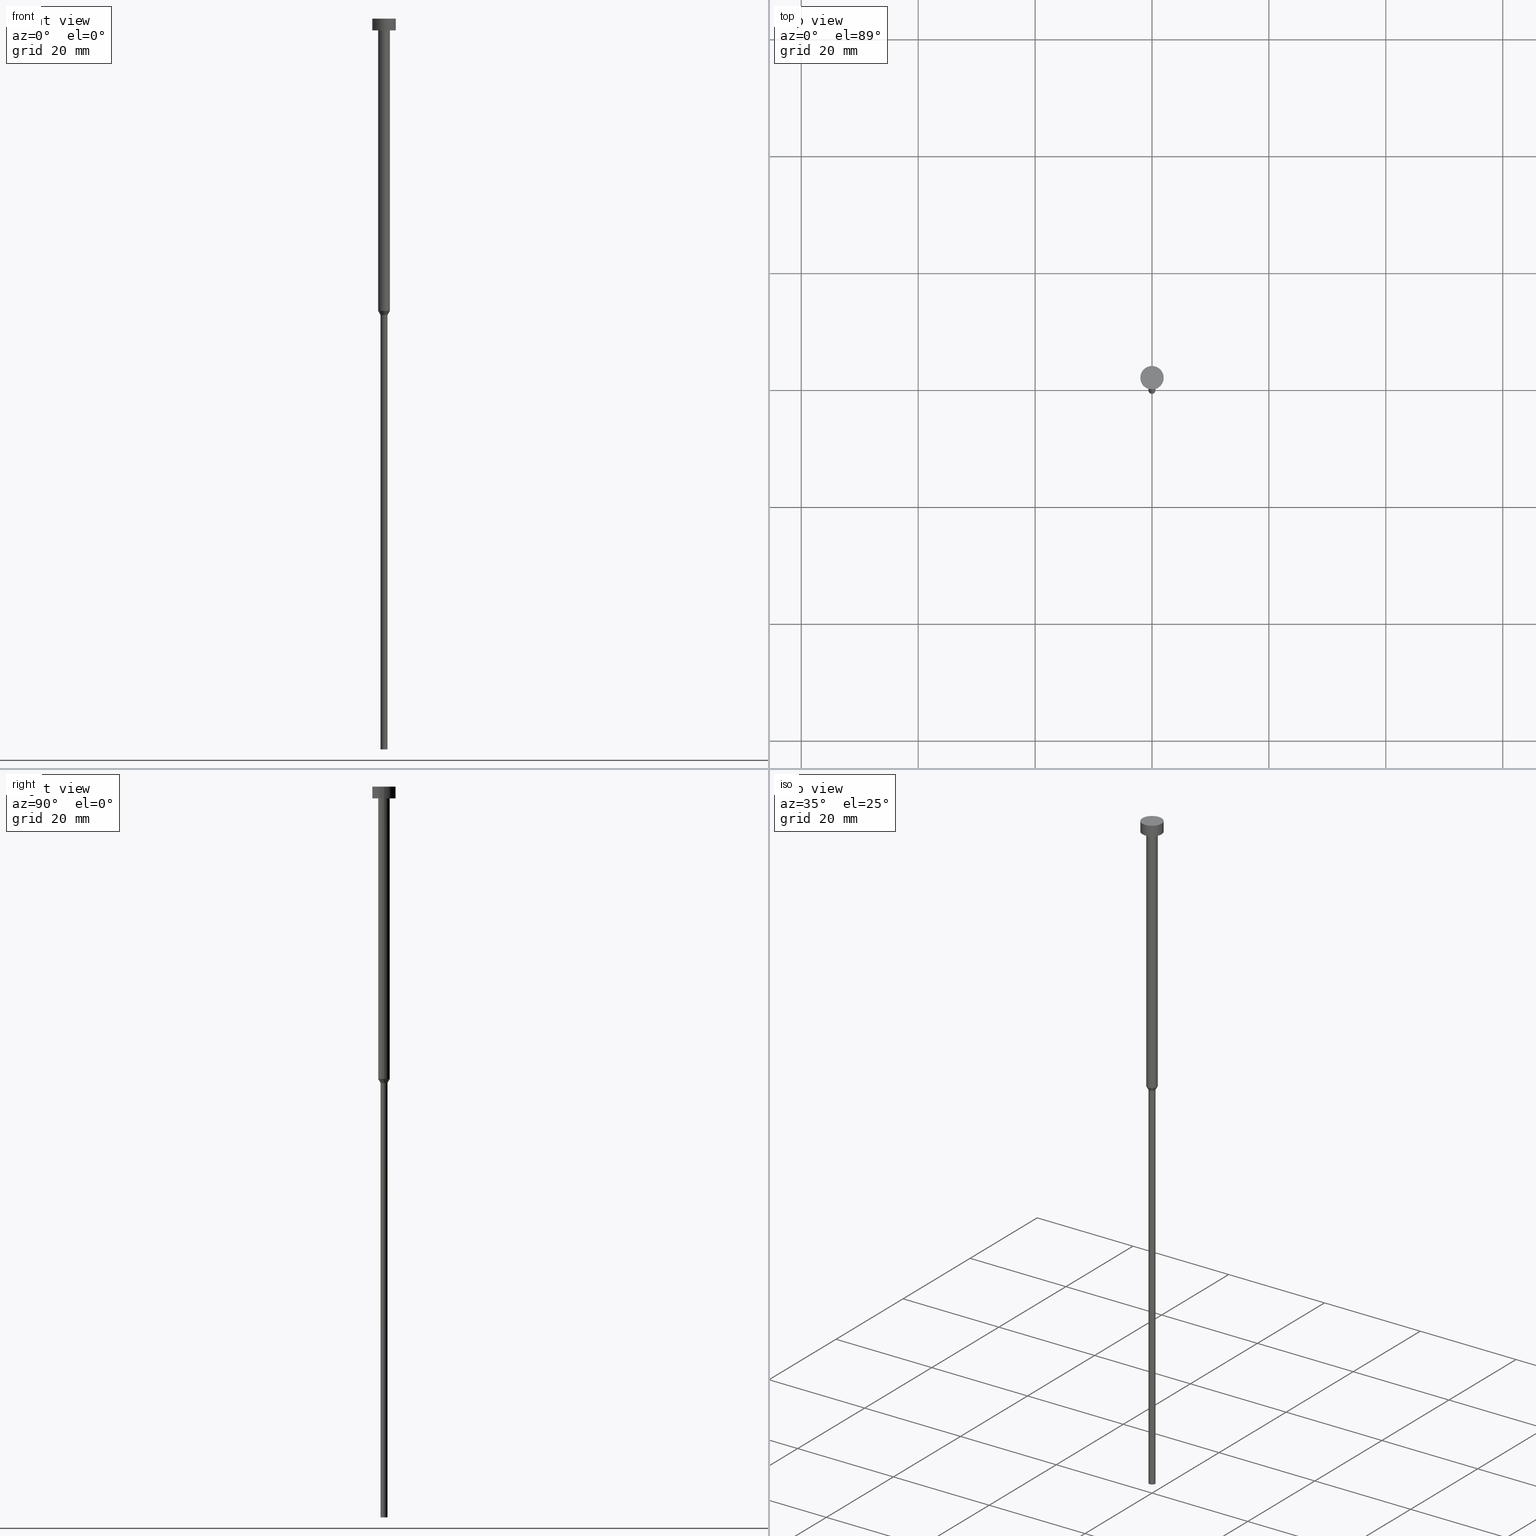
[diagram: canonical four-view strip — front | top / right | iso, engineering-drawing reading convention]
A machine part, canonical four-view strip (front | top / right | iso — engineering-drawing reading convention). The complete STEP part file that produces these views, byte-faithful:
ISO-10303-21;
HEADER;
FILE_DESCRIPTION (( 'STEP AP203' ),
    '1' );
FILE_NAME ('6c34.STEP',
    '2023-02-13T11:52:46',
    ( '' ),
    ( '' ),
    'SwSTEP 2.0',
    'SolidWorks 2019',
    '' );
FILE_SCHEMA (( 'CONFIG_CONTROL_DESIGN' ));
ENDSEC;

DATA;
#1 = AXIS2_PLACEMENT_3D ( 'NONE', #342, #131, #47 ) ;
#2 = DIRECTION ( 'NONE',  ( -0.000000000000000000, -0.000000000000000000, 1.000000000000000000 ) ) ;
#3 = ORIENTED_EDGE ( 'NONE', *, *, #87, .F. ) ;
#4 = DIRECTION ( 'NONE',  ( 0.000000000000000000, 0.000000000000000000, -1.000000000000000000 ) ) ;
#5 = DIRECTION ( 'NONE',  ( -0.000000000000000000, -0.000000000000000000, 1.000000000000000000 ) ) ;
#6 = ORIENTED_EDGE ( 'NONE', *, *, #35, .T. ) ;
#7 = EDGE_CURVE ( 'NONE', #31, #330, #321, .T. ) ;
#8 = CONICAL_SURFACE ( 'NONE', #316, 1.000000000000003109, 0.5235987755983010361 ) ;
#9 = FACE_OUTER_BOUND ( 'NONE', #79, .T. ) ;
#10 = LOCAL_TIME ( 12, 52, 46.00000000000000000, #15 ) ;
#11 = DATE_AND_TIME ( #228, #10 ) ;
#12 = EDGE_LOOP ( 'NONE', ( #86, #160, #252, #32 ) ) ;
#13 = PERSON_AND_ORGANIZATION_ROLE ( 'design_owner' ) ;
#14 = CIRCLE ( 'NONE', #216, 1.000000000000003553 ) ;
#15 = COORDINATED_UNIVERSAL_TIME_OFFSET ( 1, 0, .AHEAD. ) ;
#16 = AXIS2_PLACEMENT_3D ( 'NONE', #264, #243, #238 ) ;
#17 = CALENDAR_DATE ( 2023, 13, 2 ) ;
#18 = DIRECTION ( 'NONE',  ( 1.000000000000000000, 0.000000000000000000, 0.000000000000000000 ) ) ;
#19 = PERSON_AND_ORGANIZATION ( #335, #214 ) ;
#20 = ADVANCED_FACE ( 'NONE', ( #246 ), #8, .T. ) ;
#21 = CALENDAR_DATE ( 2023, 13, 2 ) ;
#22 = CARTESIAN_POINT ( 'NONE',  ( 1.000000000000003331, 0.000000000000000000, 0.000000000000000000 ) ) ;
#23 = PERSON_AND_ORGANIZATION ( #335, #214 ) ;
#24 = ADVANCED_FACE ( 'NONE', ( #43 ), #85, .T. ) ;
#25 = FACE_OUTER_BOUND ( 'NONE', #116, .T. ) ;
#26 = DIRECTION ( 'NONE',  ( -0.000000000000000000, -0.000000000000000000, 1.000000000000000000 ) ) ;
#27 = CARTESIAN_POINT ( 'NONE',  ( -0.5999999999999998668, 7.347880794884117764E-17, 0.000000000000000000 ) ) ;
#28 = CARTESIAN_POINT ( 'NONE',  ( 0.000000000000000000, 0.000000000000000000, 0.000000000000000000 ) ) ;
#29 = VECTOR ( 'NONE', #95, 1000.000000000000000 ) ;
#30 = CYLINDRICAL_SURFACE ( 'NONE', #16, 0.5999999999999998668 ) ;
#31 = VERTEX_POINT ( 'NONE', #196 ) ;
#32 = ORIENTED_EDGE ( 'NONE', *, *, #288, .F. ) ;
#33 = DIRECTION ( 'NONE',  ( 1.000000000000000000, 0.000000000000000000, 0.000000000000000000 ) ) ;
#34 = VERTEX_POINT ( 'NONE', #56 ) ;
#35 = EDGE_CURVE ( 'NONE', #310, #112, #339, .T. ) ;
#36 = CARTESIAN_POINT ( 'NONE',  ( -2.000000000000000000, 2.449293598294706414E-16, -2.449293598294705921E-16 ) ) ;
#37 = VECTOR ( 'NONE', #106, 1000.000000000000000 ) ;
#38 = DIRECTION ( 'NONE',  ( 1.000000000000000000, 0.000000000000000000, 0.000000000000000000 ) ) ;
#39 = CIRCLE ( 'NONE', #192, 0.5999999999999999778 ) ;
#40 = DIRECTION ( 'NONE',  ( 0.000000000000000000, -0.000000000000000000, 1.000000000000000000 ) ) ;
#41 = DIRECTION ( 'NONE',  ( 1.000000000000000000, 0.000000000000000000, 0.000000000000000000 ) ) ;
#42 = CC_DESIGN_APPROVAL ( #206, ( #100 ) ) ;
#43 = FACE_OUTER_BOUND ( 'NONE', #183, .T. ) ;
#44 = ORIENTED_EDGE ( 'NONE', *, *, #107, .T. ) ;
#45 = VERTEX_POINT ( 'NONE', #170 ) ;
#46 = APPROVAL_DATE_TIME ( #230, #67 ) ;
#47 = DIRECTION ( 'NONE',  ( 1.000000000000000000, 0.000000000000000000, 0.000000000000000000 ) ) ;
#48 = CARTESIAN_POINT ( 'NONE',  ( 0.000000000000000000, 0.000000000000000000, -50.69282032302755425 ) ) ;
#49 = EDGE_LOOP ( 'NONE', ( #256, #289, #328, #57 ) ) ;
#50 = CIRCLE ( 'NONE', #234, 1.000000000000003109 ) ;
#51 = DATE_TIME_ROLE ( 'creation_date' ) ;
#52 = EDGE_CURVE ( 'NONE', #276, #34, #241, .T. ) ;
#53 = CARTESIAN_POINT ( 'NONE',  ( -2.000000000000000000, 2.449293598294706414E-16, 0.000000000000000000 ) ) ;
#54 = ORIENTED_EDGE ( 'NONE', *, *, #146, .F. ) ;
#55 = VERTEX_POINT ( 'NONE', #266 ) ;
#56 = CARTESIAN_POINT ( 'NONE',  ( -0.5999999999999999778, 7.347880794884117764E-17, -50.69282032302755425 ) ) ;
#57 = ORIENTED_EDGE ( 'NONE', *, *, #72, .F. ) ;
#58 = CARTESIAN_POINT ( 'NONE',  ( -0.5999999999999998668, 7.347880794884117764E-17, -125.0000000000000000 ) ) ;
#59 = APPROVAL_PERSON_ORGANIZATION ( #81, #67, #186 ) ;
#60 = CARTESIAN_POINT ( 'NONE',  ( 0.000000000000000000, 0.000000000000000000, -2.449293598294705921E-16 ) ) ;
#61 = CARTESIAN_POINT ( 'NONE',  ( -1.000000000000003331, 1.224646799147357151E-16, 0.000000000000000000 ) ) ;
#62 = DIRECTION ( 'NONE',  ( 1.000000000000000000, 0.000000000000000000, 0.000000000000000000 ) ) ;
#63 = CARTESIAN_POINT ( 'NONE',  ( 0.000000000000000000, 0.000000000000000000, -50.00000000000000000 ) ) ;
#64 = VERTEX_POINT ( 'NONE', #240 ) ;
#65 = UNCERTAINTY_MEASURE_WITH_UNIT (LENGTH_MEASURE( 1.000000000000000082E-05 ), #222, 'distance_accuracy_value', 'NONE');
#66 = DIRECTION ( 'NONE',  ( 1.000000000000000000, 0.000000000000000000, 0.000000000000000000 ) ) ;
#67 = APPROVAL ( #77, 'NEUR�EN�' ) ;
#68 = CARTESIAN_POINT ( 'NONE',  ( 0.000000000000000000, 0.000000000000000000, -125.0000000000000000 ) ) ;
#69 = CARTESIAN_POINT ( 'NONE',  ( 2.000000000000000000, 0.000000000000000000, -2.449293598294705921E-16 ) ) ;
#70 = APPROVAL_PERSON_ORGANIZATION ( #133, #206, #253 ) ;
#71 = EDGE_LOOP ( 'NONE', ( #286, #172 ) ) ;
#72 = EDGE_CURVE ( 'NONE', #145, #45, #14, .T. ) ;
#73 = APPLICATION_CONTEXT ( 'configuration controlled 3d designs of mechanical parts and assemblies' ) ;
#74 = DATE_AND_TIME ( #313, #271 ) ;
#75 = LINE ( 'NONE', #139, #37 ) ;
#76 = ORIENTED_EDGE ( 'NONE', *, *, #7, .T. ) ;
#77 = APPROVAL_STATUS ( 'not_yet_approved' ) ;
#78 = EDGE_CURVE ( 'NONE', #34, #31, #39, .T. ) ;
#79 = EDGE_LOOP ( 'NONE', ( #152, #165, #178, #89 ) ) ;
#80 = AXIS2_PLACEMENT_3D ( 'NONE', #68, #202, #244 ) ;
#81 = PERSON_AND_ORGANIZATION ( #335, #214 ) ;
#82 = ORIENTED_EDGE ( 'NONE', *, *, #78, .F. ) ;
#83 = COORDINATED_UNIVERSAL_TIME_OFFSET ( 1, 0, .AHEAD. ) ;
#84 = AXIS2_PLACEMENT_3D ( 'NONE', #180, #354, #123 ) ;
#85 = CYLINDRICAL_SURFACE ( 'NONE', #305, 1.000000000000003331 ) ;
#86 = ORIENTED_EDGE ( 'NONE', *, *, #227, .T. ) ;
#87 = EDGE_CURVE ( 'NONE', #34, #137, #92, .T. ) ;
#88 = ADVANCED_FACE ( 'NONE', ( #25 ), #143, .T. ) ;
#89 = ORIENTED_EDGE ( 'NONE', *, *, #107, .F. ) ;
#90 = DIRECTION ( 'NONE',  ( -0.000000000000000000, -0.000000000000000000, 1.000000000000000000 ) ) ;
#91 = EDGE_LOOP ( 'NONE', ( #122, #278 ) ) ;
#92 = LINE ( 'NONE', #258, #130 ) ;
#93 = DIRECTION ( 'NONE',  ( 0.5000000000000018874, 0.000000000000000000, 0.8660254037844375974 ) ) ;
#94 = EDGE_CURVE ( 'NONE', #330, #45, #118, .T. ) ;
#95 = DIRECTION ( 'NONE',  ( -0.000000000000000000, -0.000000000000000000, 1.000000000000000000 ) ) ;
#96 = CYLINDRICAL_SURFACE ( 'NONE', #225, 0.5999999999999998668 ) ;
#97 = CIRCLE ( 'NONE', #280, 2.000000000000000000 ) ;
#98 = FACE_BOUND ( 'NONE', #175, .T. ) ;
#99 = CYLINDRICAL_SURFACE ( 'NONE', #349, 2.000000000000000000 ) ;
#100 = PRODUCT_DEFINITION ( 'NEZN�M�', '', #135, #104 ) ;
#101 = DIRECTION ( 'NONE',  ( 1.000000000000000000, 0.000000000000000000, 0.000000000000000000 ) ) ;
#102 = DIRECTION ( 'NONE',  ( -0.000000000000000000, -0.000000000000000000, 1.000000000000000000 ) ) ;
#103 =( GEOMETRIC_REPRESENTATION_CONTEXT ( 3 ) GLOBAL_UNCERTAINTY_ASSIGNED_CONTEXT ( ( #65 ) ) GLOBAL_UNIT_ASSIGNED_CONTEXT ( ( #222, #326, #129 ) ) REPRESENTATION_CONTEXT ( 'NONE', 'WORKASPACE' ) );
#104 = DESIGN_CONTEXT ( 'detailed design', #164, 'design' ) ;
#105 = PERSON_AND_ORGANIZATION ( #335, #214 ) ;
#106 = DIRECTION ( 'NONE',  ( -0.000000000000000000, -0.000000000000000000, 1.000000000000000000 ) ) ;
#107 = EDGE_CURVE ( 'NONE', #64, #112, #75, .T. ) ;
#108 = PERSON_AND_ORGANIZATION_ROLE ( 'creator' ) ;
#109 = COORDINATED_UNIVERSAL_TIME_OFFSET ( 1, 0, .AHEAD. ) ;
#110 = AXIS2_PLACEMENT_3D ( 'NONE', #126, #4, #331 ) ;
#111 = PERSON_AND_ORGANIZATION_ROLE ( 'classification_officer' ) ;
#112 = VERTEX_POINT ( 'NONE', #69 ) ;
#113 = PERSON_AND_ORGANIZATION ( #335, #214 ) ;
#114 = VECTOR ( 'NONE', #93, 1000.000000000000000 ) ;
#115 = CARTESIAN_POINT ( 'NONE',  ( 0.000000000000000000, 0.000000000000000000, 0.000000000000000000 ) ) ;
#116 = EDGE_LOOP ( 'NONE', ( #270, #201, #44, #281 ) ) ;
#117 = VECTOR ( 'NONE', #350, 1000.000000000000000 ) ;
#118 = LINE ( 'NONE', #22, #171 ) ;
#119 = ORIENTED_EDGE ( 'NONE', *, *, #94, .F. ) ;
#120 = LINE ( 'NONE', #53, #147 ) ;
#121 = ADVANCED_FACE ( 'NONE', ( #340 ), #211, .T. ) ;
#122 = ORIENTED_EDGE ( 'NONE', *, *, #227, .F. ) ;
#123 = DIRECTION ( 'NONE',  ( -1.000000000000000000, 0.000000000000000000, -0.000000000000000000 ) ) ;
#124 = ORIENTED_EDGE ( 'NONE', *, *, #248, .T. ) ;
#125 = CC_DESIGN_APPROVAL ( #67, ( #135 ) ) ;
#126 = CARTESIAN_POINT ( 'NONE',  ( 0.000000000000000000, 0.000000000000000000, -125.0000000000000000 ) ) ;
#127 = EDGE_LOOP ( 'NONE', ( #3, #343, #76, #285 ) ) ;
#128 = DIRECTION ( 'NONE',  ( 1.000000000000000000, 0.000000000000000000, 0.000000000000000000 ) ) ;
#129 =( NAMED_UNIT ( * ) SI_UNIT ( $, .STERADIAN. ) SOLID_ANGLE_UNIT ( ) );
#130 = VECTOR ( 'NONE', #237, 1000.000000000000000 ) ;
#131 = DIRECTION ( 'NONE',  ( -0.000000000000000000, -0.000000000000000000, 1.000000000000000000 ) ) ;
#132 = ORIENTED_EDGE ( 'NONE', *, *, #162, .F. ) ;
#133 = PERSON_AND_ORGANIZATION ( #335, #214 ) ;
#134 = CC_DESIGN_PERSON_AND_ORGANIZATION_ASSIGNMENT ( #307, #232, ( #100 ) ) ;
#135 = PRODUCT_DEFINITION_FORMATION_WITH_SPECIFIED_SOURCE ( 'LIBOVOLN�', '', #148, .NOT_KNOWN. ) ;
#136 = PRODUCT_DEFINITION_SHAPE ( 'NONE', 'NONE',  #100 ) ;
#137 = VERTEX_POINT ( 'NONE', #275 ) ;
#138 = CLOSED_SHELL ( 'NONE', ( #156, #24, #194, #279, #315, #303, #20, #121, #184, #88, #329 ) ) ;
#139 = CARTESIAN_POINT ( 'NONE',  ( 2.000000000000000000, 0.000000000000000000, 0.000000000000000000 ) ) ;
#140 = CIRCLE ( 'NONE', #334, 0.5999999999999999778 ) ;
#141 = COORDINATED_UNIVERSAL_TIME_OFFSET ( 1, 0, .AHEAD. ) ;
#142 = EDGE_CURVE ( 'NONE', #31, #34, #140, .T. ) ;
#143 = CYLINDRICAL_SURFACE ( 'NONE', #226, 2.000000000000000000 ) ;
#144 = DIRECTION ( 'NONE',  ( -0.000000000000000000, -0.000000000000000000, 1.000000000000000000 ) ) ;
#145 = VERTEX_POINT ( 'NONE', #179 ) ;
#146 = EDGE_CURVE ( 'NONE', #330, #137, #50, .T. ) ;
#147 = VECTOR ( 'NONE', #26, 1000.000000000000000 ) ;
#148 = PRODUCT ( '6c34', '6c34', '', ( #254 ) ) ;
#149 = FACE_OUTER_BOUND ( 'NONE', #12, .T. ) ;
#150 = PLANE ( 'NONE',  #110 ) ;
#151 = CARTESIAN_POINT ( 'NONE',  ( 0.000000000000000000, 0.000000000000000000, -50.69282032302755425 ) ) ;
#152 = ORIENTED_EDGE ( 'NONE', *, *, #213, .T. ) ;
#153 = CARTESIAN_POINT ( 'NONE',  ( 1.000000000000003109, 0.000000000000000000, -50.00000000000000000 ) ) ;
#154 = DIRECTION ( 'NONE',  ( 1.000000000000000000, 0.000000000000000000, 0.000000000000000000 ) ) ;
#155 = ADVANCED_BREP_SHAPE_REPRESENTATION ( '6c34', ( #352, #323 ), #103 ) ;
#156 = ADVANCED_FACE ( 'NONE', ( #9 ), #99, .T. ) ;
#157 = EDGE_CURVE ( 'NONE', #112, #310, #239, .T. ) ;
#158 = PERSON_AND_ORGANIZATION_ROLE ( 'design_supplier' ) ;
#159 = SECURITY_CLASSIFICATION ( '', '', #251 ) ;
#160 = ORIENTED_EDGE ( 'NONE', *, *, #52, .T. ) ;
#161 = APPLICATION_PROTOCOL_DEFINITION ( 'international standard', 'config_control_design', 1994, #164 ) ;
#162 = EDGE_CURVE ( 'NONE', #45, #145, #229, .T. ) ;
#163 = ORIENTED_EDGE ( 'NONE', *, *, #162, .T. ) ;
#164 = APPLICATION_CONTEXT ( 'configuration controlled 3d designs of mechanical parts and assemblies' ) ;
#165 = ORIENTED_EDGE ( 'NONE', *, *, #268, .T. ) ;
#166 = CC_DESIGN_PERSON_AND_ORGANIZATION_ASSIGNMENT ( #19, #158, ( #135 ) ) ;
#167 = APPROVAL_PERSON_ORGANIZATION ( #23, #173, #236 ) ;
#168 = DIRECTION ( 'NONE',  ( 1.000000000000000000, 0.000000000000000000, 0.000000000000000000 ) ) ;
#169 = CC_DESIGN_PERSON_AND_ORGANIZATION_ASSIGNMENT ( #341, #108, ( #135 ) ) ;
#170 = CARTESIAN_POINT ( 'NONE',  ( 1.000000000000003553, 0.000000000000000000, -2.000000000000000444 ) ) ;
#171 = VECTOR ( 'NONE', #235, 1000.000000000000000 ) ;
#172 = ORIENTED_EDGE ( 'NONE', *, *, #200, .F. ) ;
#173 = APPROVAL ( #317, 'NEUR�EN�' ) ;
#174 = DIRECTION ( 'NONE',  ( -0.000000000000000000, -0.000000000000000000, 1.000000000000000000 ) ) ;
#175 = EDGE_LOOP ( 'NONE', ( #163, #325 ) ) ;
#176 = AXIS2_PLACEMENT_3D ( 'NONE', #182, #102, #277 ) ;
#177 = CARTESIAN_POINT ( 'NONE',  ( 1.000000000000003109, 0.000000000000000000, -50.00000000000000000 ) ) ;
#178 = ORIENTED_EDGE ( 'NONE', *, *, #157, .F. ) ;
#179 = CARTESIAN_POINT ( 'NONE',  ( -1.000000000000003553, 1.224646799147357398E-16, -2.000000000000000444 ) ) ;
#180 = CARTESIAN_POINT ( 'NONE',  ( 0.000000000000000000, -2.000000000000000000, -2.000000000000000444 ) ) ;
#181 = AXIS2_PLACEMENT_3D ( 'NONE', #197, #291, #259 ) ;
#182 = CARTESIAN_POINT ( 'NONE',  ( 0.000000000000000000, 0.000000000000000000, 0.000000000000000000 ) ) ;
#183 = EDGE_LOOP ( 'NONE', ( #233, #124, #132, #119 ) ) ;
#184 = ADVANCED_FACE ( 'NONE', ( #98, #207 ), #272, .T. ) ;
#185 = CALENDAR_DATE ( 2023, 13, 2 ) ;
#186 = APPROVAL_ROLE ( '' ) ;
#187 = DIRECTION ( 'NONE',  ( -0.000000000000000000, -0.000000000000000000, 1.000000000000000000 ) ) ;
#188 = APPLICATION_PROTOCOL_DEFINITION ( 'international standard', 'config_control_design', 1994, #73 ) ;
#189 = CONICAL_SURFACE ( 'NONE', #205, 1.000000000000003109, 0.5235987755983010361 ) ;
#190 = COORDINATED_UNIVERSAL_TIME_OFFSET ( 1, 0, .AHEAD. ) ;
#191 = ORIENTED_EDGE ( 'NONE', *, *, #288, .T. ) ;
#192 = AXIS2_PLACEMENT_3D ( 'NONE', #151, #2, #327 ) ;
#193 = DATE_TIME_ROLE ( 'classification_date' ) ;
#194 = ADVANCED_FACE ( 'NONE', ( #220 ), #189, .T. ) ;
#195 = DIRECTION ( 'NONE',  ( 1.000000000000000000, 0.000000000000000000, 0.000000000000000000 ) ) ;
#196 = CARTESIAN_POINT ( 'NONE',  ( 0.5999999999999999778, 0.000000000000000000, -50.69282032302755425 ) ) ;
#197 = CARTESIAN_POINT ( 'NONE',  ( 0.000000000000000000, 0.000000000000000000, -125.0000000000000000 ) ) ;
#198 = CIRCLE ( 'NONE', #80, 0.5999999999999998668 ) ;
#199 = CARTESIAN_POINT ( 'NONE',  ( 0.000000000000000000, 0.000000000000000000, -1.224646799147352961E-16 ) ) ;
#200 = EDGE_CURVE ( 'NONE', #249, #64, #314, .T. ) ;
#201 = ORIENTED_EDGE ( 'NONE', *, *, #200, .T. ) ;
#202 = DIRECTION ( 'NONE',  ( -0.000000000000000000, -0.000000000000000000, 1.000000000000000000 ) ) ;
#203 = CARTESIAN_POINT ( 'NONE',  ( 0.000000000000000000, 0.000000000000000000, -50.00000000000000000 ) ) ;
#204 = DIRECTION ( 'NONE',  ( -0.000000000000000000, -0.000000000000000000, 1.000000000000000000 ) ) ;
#205 = AXIS2_PLACEMENT_3D ( 'NONE', #322, #90, #292 ) ;
#206 = APPROVAL ( #338, 'NEUR�EN�' ) ;
#207 = FACE_OUTER_BOUND ( 'NONE', #71, .T. ) ;
#208 = CARTESIAN_POINT ( 'NONE',  ( 0.5999999999999998668, 0.000000000000000000, 0.000000000000000000 ) ) ;
#209 = APPROVAL_DATE_TIME ( #11, #206 ) ;
#210 = LOCAL_TIME ( 12, 52, 46.00000000000000000, #83 ) ;
#211 = CYLINDRICAL_SURFACE ( 'NONE', #176, 1.000000000000003331 ) ;
#212 = DATE_AND_TIME ( #185, #210 ) ;
#213 = EDGE_CURVE ( 'NONE', #64, #249, #97, .T. ) ;
#214 = ORGANIZATION ( 'NEUR�EN�', 'NEUR�EN�', '' ) ;
#215 = ORIENTED_EDGE ( 'NONE', *, *, #7, .F. ) ;
#216 = AXIS2_PLACEMENT_3D ( 'NONE', #347, #296, #38 ) ;
#217 = AXIS2_PLACEMENT_3D ( 'NONE', #332, #204, #62 ) ;
#218 = EDGE_LOOP ( 'NONE', ( #312, #353, #191, #82 ) ) ;
#219 = CARTESIAN_POINT ( 'NONE',  ( -2.000000000000000000, 2.449293598294706414E-16, -2.000000000000000444 ) ) ;
#220 = FACE_OUTER_BOUND ( 'NONE', #297, .T. ) ;
#221 = AXIS2_PLACEMENT_3D ( 'NONE', #320, #144, #346 ) ;
#222 =( LENGTH_UNIT ( ) NAMED_UNIT ( * ) SI_UNIT ( .MILLI., .METRE. ) );
#223 = AXIS2_PLACEMENT_3D ( 'NONE', #60, #324, #168 ) ;
#224 = DIRECTION ( 'NONE',  ( -0.000000000000000000, -0.000000000000000000, 1.000000000000000000 ) ) ;
#225 = AXIS2_PLACEMENT_3D ( 'NONE', #355, #224, #299 ) ;
#226 = AXIS2_PLACEMENT_3D ( 'NONE', #115, #319, #195 ) ;
#227 = EDGE_CURVE ( 'NONE', #55, #276, #300, .T. ) ;
#228 = CALENDAR_DATE ( 2023, 13, 2 ) ;
#229 = CIRCLE ( 'NONE', #217, 1.000000000000003553 ) ;
#230 = DATE_AND_TIME ( #17, #290 ) ;
#231 = CC_DESIGN_PERSON_AND_ORGANIZATION_ASSIGNMENT ( #105, #13, ( #148 ) ) ;
#232 = PERSON_AND_ORGANIZATION_ROLE ( 'creator' ) ;
#233 = ORIENTED_EDGE ( 'NONE', *, *, #146, .T. ) ;
#234 = AXIS2_PLACEMENT_3D ( 'NONE', #63, #174, #41 ) ;
#235 = DIRECTION ( 'NONE',  ( -0.000000000000000000, -0.000000000000000000, 1.000000000000000000 ) ) ;
#236 = APPROVAL_ROLE ( '' ) ;
#237 = DIRECTION ( 'NONE',  ( -0.5000000000000018874, 6.123233995736789455E-17, 0.8660254037844375974 ) ) ;
#238 = DIRECTION ( 'NONE',  ( 1.000000000000000000, 0.000000000000000000, 0.000000000000000000 ) ) ;
#239 = CIRCLE ( 'NONE', #274, 2.000000000000000000 ) ;
#240 = CARTESIAN_POINT ( 'NONE',  ( 2.000000000000000000, 0.000000000000000000, -2.000000000000000444 ) ) ;
#241 = LINE ( 'NONE', #27, #260 ) ;
#242 = CC_DESIGN_PERSON_AND_ORGANIZATION_ASSIGNMENT ( #113, #111, ( #159 ) ) ;
#243 = DIRECTION ( 'NONE',  ( -0.000000000000000000, -0.000000000000000000, 1.000000000000000000 ) ) ;
#244 = DIRECTION ( 'NONE',  ( 1.000000000000000000, 0.000000000000000000, 0.000000000000000000 ) ) ;
#245 = CARTESIAN_POINT ( 'NONE',  ( 0.000000000000000000, 0.000000000000000000, 0.000000000000000000 ) ) ;
#246 = FACE_OUTER_BOUND ( 'NONE', #127, .T. ) ;
#247 = CARTESIAN_POINT ( 'NONE',  ( 0.000000000000000000, 0.000000000000000000, -2.449293598294705921E-16 ) ) ;
#248 = EDGE_CURVE ( 'NONE', #137, #145, #287, .T. ) ;
#249 = VERTEX_POINT ( 'NONE', #219 ) ;
#250 = FACE_OUTER_BOUND ( 'NONE', #263, .T. ) ;
#251 = SECURITY_CLASSIFICATION_LEVEL ( 'unclassified' ) ;
#252 = ORIENTED_EDGE ( 'NONE', *, *, #142, .F. ) ;
#253 = APPROVAL_ROLE ( '' ) ;
#254 = MECHANICAL_CONTEXT ( 'NONE', #73, 'mechanical' ) ;
#255 = PRODUCT_RELATED_PRODUCT_CATEGORY ( 'detail', '', ( #148 ) ) ;
#256 = ORIENTED_EDGE ( 'NONE', *, *, #248, .F. ) ;
#257 = APPROVAL_DATE_TIME ( #212, #173 ) ;
#258 = CARTESIAN_POINT ( 'NONE',  ( -1.000000000000003109, 1.224646799147356905E-16, -50.00000000000000000 ) ) ;
#259 = DIRECTION ( 'NONE',  ( 1.000000000000000000, 0.000000000000000000, 0.000000000000000000 ) ) ;
#260 = VECTOR ( 'NONE', #293, 1000.000000000000000 ) ;
#261 = DIRECTION ( 'NONE',  ( -0.000000000000000000, -0.000000000000000000, 1.000000000000000000 ) ) ;
#262 = CIRCLE ( 'NONE', #221, 1.000000000000003109 ) ;
#263 = EDGE_LOOP ( 'NONE', ( #294, #6 ) ) ;
#264 = CARTESIAN_POINT ( 'NONE',  ( 0.000000000000000000, 0.000000000000000000, 0.000000000000000000 ) ) ;
#265 = LINE ( 'NONE', #208, #29 ) ;
#266 = CARTESIAN_POINT ( 'NONE',  ( 0.5999999999999998668, 0.000000000000000000, -125.0000000000000000 ) ) ;
#267 = ORIENTED_EDGE ( 'NONE', *, *, #87, .T. ) ;
#268 = EDGE_CURVE ( 'NONE', #249, #310, #120, .T. ) ;
#269 = FACE_OUTER_BOUND ( 'NONE', #218, .T. ) ;
#270 = ORIENTED_EDGE ( 'NONE', *, *, #268, .F. ) ;
#271 = LOCAL_TIME ( 12, 52, 46.00000000000000000, #109 ) ;
#272 = PLANE ( 'NONE',  #84 ) ;
#273 = EDGE_CURVE ( 'NONE', #137, #330, #262, .T. ) ;
#274 = AXIS2_PLACEMENT_3D ( 'NONE', #247, #5, #128 ) ;
#275 = CARTESIAN_POINT ( 'NONE',  ( -1.000000000000003109, 1.224646799147356905E-16, -50.00000000000000000 ) ) ;
#276 = VERTEX_POINT ( 'NONE', #58 ) ;
#277 = DIRECTION ( 'NONE',  ( 1.000000000000000000, 0.000000000000000000, 0.000000000000000000 ) ) ;
#278 = ORIENTED_EDGE ( 'NONE', *, *, #309, .F. ) ;
#279 = ADVANCED_FACE ( 'NONE', ( #149 ), #30, .T. ) ;
#280 = AXIS2_PLACEMENT_3D ( 'NONE', #308, #283, #33 ) ;
#281 = ORIENTED_EDGE ( 'NONE', *, *, #35, .F. ) ;
#282 = ORIENTED_EDGE ( 'NONE', *, *, #142, .T. ) ;
#283 = DIRECTION ( 'NONE',  ( -0.000000000000000000, -0.000000000000000000, 1.000000000000000000 ) ) ;
#284 = CC_DESIGN_APPROVAL ( #173, ( #159 ) ) ;
#285 = ORIENTED_EDGE ( 'NONE', *, *, #273, .F. ) ;
#286 = ORIENTED_EDGE ( 'NONE', *, *, #213, .F. ) ;
#287 = LINE ( 'NONE', #61, #117 ) ;
#288 = EDGE_CURVE ( 'NONE', #55, #31, #265, .T. ) ;
#289 = ORIENTED_EDGE ( 'NONE', *, *, #273, .T. ) ;
#290 = LOCAL_TIME ( 12, 52, 46.00000000000000000, #190 ) ;
#291 = DIRECTION ( 'NONE',  ( -0.000000000000000000, -0.000000000000000000, 1.000000000000000000 ) ) ;
#292 = DIRECTION ( 'NONE',  ( 1.000000000000000000, 0.000000000000000000, 0.000000000000000000 ) ) ;
#293 = DIRECTION ( 'NONE',  ( -0.000000000000000000, -0.000000000000000000, 1.000000000000000000 ) ) ;
#294 = ORIENTED_EDGE ( 'NONE', *, *, #157, .T. ) ;
#295 = FACE_OUTER_BOUND ( 'NONE', #91, .T. ) ;
#296 = DIRECTION ( 'NONE',  ( -0.000000000000000000, -0.000000000000000000, 1.000000000000000000 ) ) ;
#297 = EDGE_LOOP ( 'NONE', ( #282, #267, #54, #215 ) ) ;
#298 = DIRECTION ( 'NONE',  ( -0.000000000000000000, -0.000000000000000000, 1.000000000000000000 ) ) ;
#299 = DIRECTION ( 'NONE',  ( 1.000000000000000000, 0.000000000000000000, 0.000000000000000000 ) ) ;
#300 = CIRCLE ( 'NONE', #181, 0.5999999999999998668 ) ;
#301 = PLANE ( 'NONE',  #318 ) ;
#302 = DIRECTION ( 'NONE',  ( 1.000000000000000000, 0.000000000000000000, 0.000000000000000000 ) ) ;
#303 = ADVANCED_FACE ( 'NONE', ( #269 ), #96, .T. ) ;
#304 = CARTESIAN_POINT ( 'NONE',  ( 0.000000000000000000, 0.000000000000000000, 0.000000000000000000 ) ) ;
#305 = AXIS2_PLACEMENT_3D ( 'NONE', #28, #261, #351 ) ;
#306 = LOCAL_TIME ( 12, 52, 46.00000000000000000, #141 ) ;
#307 = PERSON_AND_ORGANIZATION ( #335, #214 ) ;
#308 = CARTESIAN_POINT ( 'NONE',  ( 0.000000000000000000, 0.000000000000000000, -2.000000000000000444 ) ) ;
#309 = EDGE_CURVE ( 'NONE', #276, #55, #198, .T. ) ;
#310 = VERTEX_POINT ( 'NONE', #36 ) ;
#311 = SHAPE_DEFINITION_REPRESENTATION ( #136, #155 ) ;
#312 = ORIENTED_EDGE ( 'NONE', *, *, #52, .F. ) ;
#313 = CALENDAR_DATE ( 2023, 13, 2 ) ;
#314 = CIRCLE ( 'NONE', #1, 2.000000000000000000 ) ;
#315 = ADVANCED_FACE ( 'NONE', ( #295 ), #150, .T. ) ;
#316 = AXIS2_PLACEMENT_3D ( 'NONE', #203, #298, #66 ) ;
#317 = APPROVAL_STATUS ( 'not_yet_approved' ) ;
#318 = AXIS2_PLACEMENT_3D ( 'NONE', #199, #40, #154 ) ;
#319 = DIRECTION ( 'NONE',  ( -0.000000000000000000, -0.000000000000000000, 1.000000000000000000 ) ) ;
#320 = CARTESIAN_POINT ( 'NONE',  ( 0.000000000000000000, 0.000000000000000000, -50.00000000000000000 ) ) ;
#321 = LINE ( 'NONE', #153, #114 ) ;
#322 = CARTESIAN_POINT ( 'NONE',  ( 0.000000000000000000, 0.000000000000000000, -50.00000000000000000 ) ) ;
#323 = AXIS2_PLACEMENT_3D ( 'NONE', #304, #337, #101 ) ;
#324 = DIRECTION ( 'NONE',  ( -0.000000000000000000, -0.000000000000000000, 1.000000000000000000 ) ) ;
#325 = ORIENTED_EDGE ( 'NONE', *, *, #72, .T. ) ;
#326 =( NAMED_UNIT ( * ) PLANE_ANGLE_UNIT ( ) SI_UNIT ( $, .RADIAN. ) );
#327 = DIRECTION ( 'NONE',  ( 1.000000000000000000, 0.000000000000000000, 0.000000000000000000 ) ) ;
#328 = ORIENTED_EDGE ( 'NONE', *, *, #94, .T. ) ;
#329 = ADVANCED_FACE ( 'NONE', ( #250 ), #301, .T. ) ;
#330 = VERTEX_POINT ( 'NONE', #177 ) ;
#331 = DIRECTION ( 'NONE',  ( -1.000000000000000000, 0.000000000000000000, -0.000000000000000000 ) ) ;
#332 = CARTESIAN_POINT ( 'NONE',  ( 0.000000000000000000, 0.000000000000000000, -2.000000000000000444 ) ) ;
#333 = DIRECTION ( 'NONE',  ( -0.000000000000000000, -0.000000000000000000, 1.000000000000000000 ) ) ;
#334 = AXIS2_PLACEMENT_3D ( 'NONE', #48, #187, #18 ) ;
#335 = PERSON ( 'NEUR�EN�', 'NEUR�EN�', 'NEUR�EN�', ('NEUR�EN�'), ('NEUR�EN�'), ('NEUR�EN�') ) ;
#336 = CC_DESIGN_DATE_AND_TIME_ASSIGNMENT ( #74, #51, ( #100 ) ) ;
#337 = DIRECTION ( 'NONE',  ( 0.000000000000000000, 0.000000000000000000, 1.000000000000000000 ) ) ;
#338 = APPROVAL_STATUS ( 'not_yet_approved' ) ;
#339 = CIRCLE ( 'NONE', #223, 2.000000000000000000 ) ;
#340 = FACE_OUTER_BOUND ( 'NONE', #49, .T. ) ;
#341 = PERSON_AND_ORGANIZATION ( #335, #214 ) ;
#342 = CARTESIAN_POINT ( 'NONE',  ( 0.000000000000000000, 0.000000000000000000, -2.000000000000000444 ) ) ;
#343 = ORIENTED_EDGE ( 'NONE', *, *, #78, .T. ) ;
#344 = CC_DESIGN_SECURITY_CLASSIFICATION ( #159, ( #135 ) ) ;
#345 = DATE_AND_TIME ( #21, #306 ) ;
#346 = DIRECTION ( 'NONE',  ( 1.000000000000000000, 0.000000000000000000, 0.000000000000000000 ) ) ;
#347 = CARTESIAN_POINT ( 'NONE',  ( 0.000000000000000000, 0.000000000000000000, -2.000000000000000444 ) ) ;
#348 = CC_DESIGN_DATE_AND_TIME_ASSIGNMENT ( #345, #193, ( #159 ) ) ;
#349 = AXIS2_PLACEMENT_3D ( 'NONE', #245, #333, #302 ) ;
#350 = DIRECTION ( 'NONE',  ( -0.000000000000000000, -0.000000000000000000, 1.000000000000000000 ) ) ;
#351 = DIRECTION ( 'NONE',  ( 1.000000000000000000, 0.000000000000000000, 0.000000000000000000 ) ) ;
#352 = MANIFOLD_SOLID_BREP ( 'Rotovat1', #138 ) ;
#353 = ORIENTED_EDGE ( 'NONE', *, *, #309, .T. ) ;
#354 = DIRECTION ( 'NONE',  ( 0.000000000000000000, 0.000000000000000000, -1.000000000000000000 ) ) ;
#355 = CARTESIAN_POINT ( 'NONE',  ( 0.000000000000000000, 0.000000000000000000, 0.000000000000000000 ) ) ;
ENDSEC;
END-ISO-10303-21;
